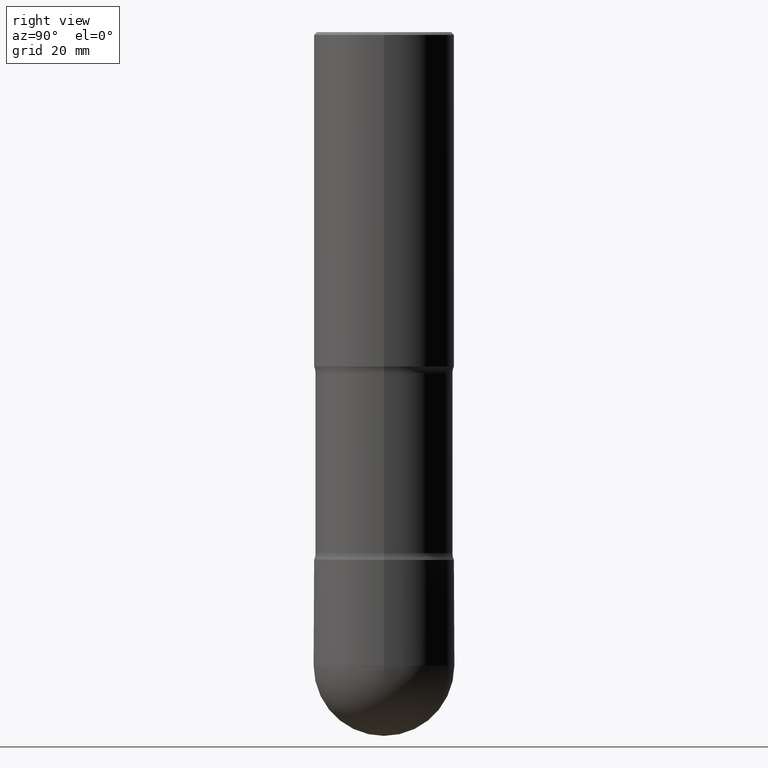
[diagram: clean part render]
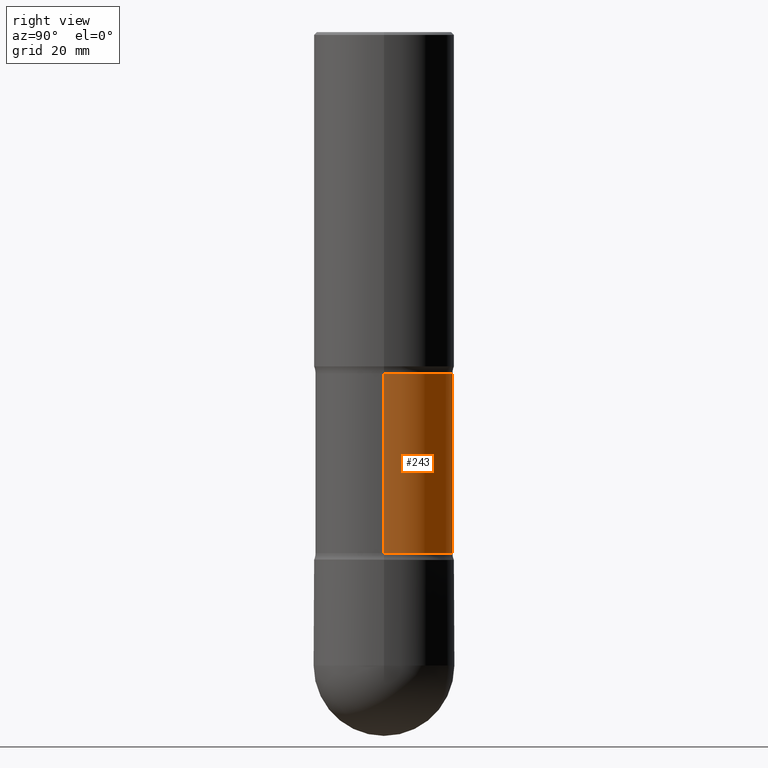
[diagram: same view with one face highlighted and labeled with its STEP entity id]
A machine part, right view. The second image highlights one B-rep face of the part: STEP entity #243.
In plain terms, the highlighted cylindrical surface (partial cylindrical patch) has radius 12.446 mm, axis along (0, -0, -1).
Its self-contained STEP definition (entity closure, byte-faithful):
#22 = VERTEX_POINT ( 'NONE', #539 ) ;
#28 = ORIENTED_EDGE ( 'NONE', *, *, #91, .T. ) ;
#67 = LINE ( 'NONE', #229, #479 ) ;
#87 = CIRCLE ( 'NONE', #318, 0.4899999999999994360 ) ;
#91 = EDGE_CURVE ( 'NONE', #294, #340, #433, .T. ) ;
#93 = ORIENTED_EDGE ( 'NONE', *, *, #514, .F. ) ;
#98 = CARTESIAN_POINT ( 'NONE',  ( 0.4899999999999994360, -1.405430561911518224E-14, -3.701010205144336318 ) ) ;
#101 = DIRECTION ( 'NONE',  ( 2.445468806185136877E-29, -3.491481338843145188E-15, -1.000000000000000000 ) ) ;
#141 = ORIENTED_EDGE ( 'NONE', *, *, #496, .F. ) ;
#184 = FACE_OUTER_BOUND ( 'NONE', #316, .T. ) ;
#195 = AXIS2_PLACEMENT_3D ( 'NONE', #425, #463, #548 ) ;
#206 = VECTOR ( 'NONE', #101, 39.37007874015748143 ) ;
#229 = CARTESIAN_POINT ( 'NONE',  ( -0.4899999999999994360, -9.671403308595530512E-15, -3.750000000000000000 ) ) ;
#242 = VERTEX_POINT ( 'NONE', #98 ) ;
#243 = ADVANCED_FACE ( 'NONE', ( #184 ), #497, .T. ) ;
#259 = DIRECTION ( 'NONE',  ( -1.000000000000000000, 6.982962677686265133E-15, 0.000000000000000000 ) ) ;
#294 = VERTEX_POINT ( 'NONE', #299 ) ;
#295 = AXIS2_PLACEMENT_3D ( 'NONE', #312, #405, #450 ) ;
#299 = CARTESIAN_POINT ( 'NONE',  ( -0.4899999999999994360, -5.041663422218510506E-15, -2.423989794855664570 ) ) ;
#312 = CARTESIAN_POINT ( 'NONE',  ( 9.170508023194262238E-29, -1.309305502066179741E-14, -3.750000000000000000 ) ) ;
#316 = EDGE_LOOP ( 'NONE', ( #28, #375, #93, #141 ) ) ;
#318 = AXIS2_PLACEMENT_3D ( 'NONE', #472, #387, #259 ) ;
#321 = CARTESIAN_POINT ( 'NONE',  ( 0.4899999999999994360, -1.177373816591553444E-14, -2.423989794855664570 ) ) ;
#340 = VERTEX_POINT ( 'NONE', #321 ) ;
#346 = DIRECTION ( 'NONE',  ( 2.445468806185136877E-29, -3.491481338843145188E-15, -1.000000000000000000 ) ) ;
#347 = EDGE_CURVE ( 'NONE', #340, #242, #357, .T. ) ;
#355 = CARTESIAN_POINT ( 'NONE',  ( 0.4899999999999994360, -1.645469903956984195E-14, -3.750000000000000000 ) ) ;
#357 = LINE ( 'NONE', #355, #206 ) ;
#375 = ORIENTED_EDGE ( 'NONE', *, *, #347, .T. ) ;
#387 = DIRECTION ( 'NONE',  ( 2.445468806185136597E-29, -3.491481338843145583E-15, -1.000000000000000000 ) ) ;
#405 = DIRECTION ( 'NONE',  ( 2.445468806185136597E-29, -3.491481338843145583E-15, -1.000000000000000000 ) ) ;
#425 = CARTESIAN_POINT ( 'NONE',  ( 5.927791429830635639E-29, -8.463315134284777408E-15, -2.423989794855664570 ) ) ;
#433 = CIRCLE ( 'NONE', #195, 0.4899999999999994360 ) ;
#450 = DIRECTION ( 'NONE',  ( -1.000000000000000000, 6.982962677686265133E-15, 0.000000000000000000 ) ) ;
#463 = DIRECTION ( 'NONE',  ( 2.445468806185136597E-29, -3.491481338843145583E-15, -1.000000000000000000 ) ) ;
#472 = CARTESIAN_POINT ( 'NONE',  ( 9.050705008053328258E-29, -1.292200806612949328E-14, -3.701010205144336318 ) ) ;
#479 = VECTOR ( 'NONE', #346, 39.37007874015748143 ) ;
#496 = EDGE_CURVE ( 'NONE', #294, #22, #67, .T. ) ;
#497 = CYLINDRICAL_SURFACE ( 'NONE', #295, 0.4899999999999994360 ) ;
#514 = EDGE_CURVE ( 'NONE', #22, #242, #87, .T. ) ;
#539 = CARTESIAN_POINT ( 'NONE',  ( -0.4899999999999994360, -9.500356354063226377E-15, -3.701010205144336318 ) ) ;
#548 = DIRECTION ( 'NONE',  ( -1.000000000000000000, 6.982962677686267499E-15, 0.000000000000000000 ) ) ;